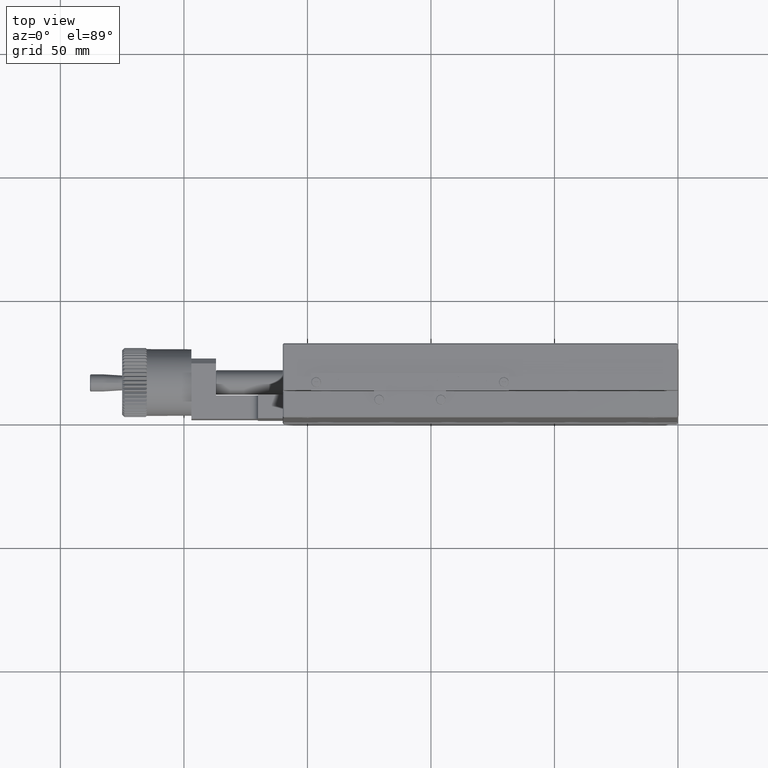
[diagram: clean part render]
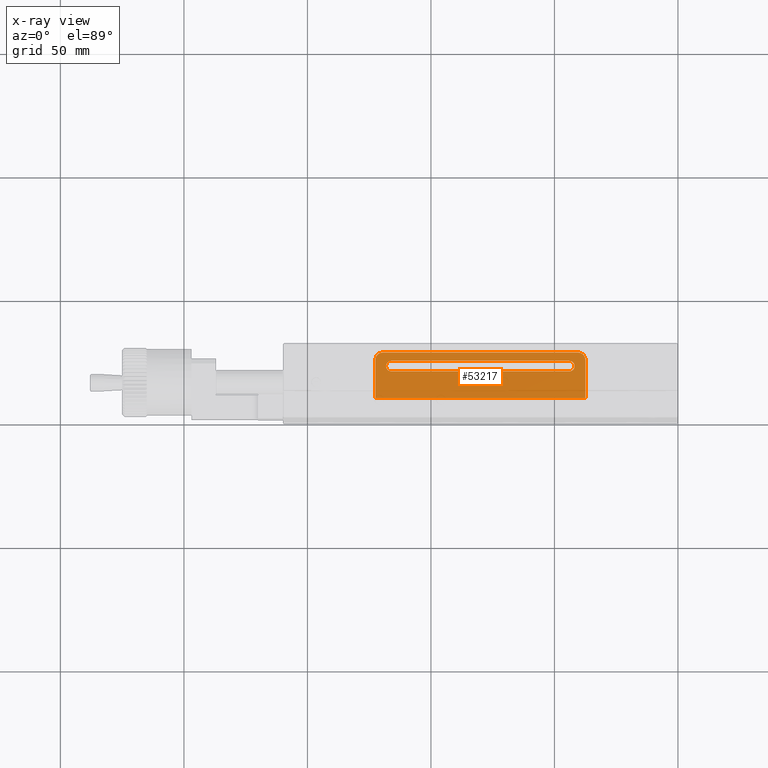
[diagram: x-ray — body ghosted, one internal face saturated and labeled with its STEP entity id]
A machine part, top view, then the same camera in x-ray: the body is ghosted and one INTERNAL B-rep face — a face not visible from any outside direction — is saturated and labeled: STEP entity #53217.
In plain terms, the highlighted planar face has unit normal (0, 0, 1).
Its self-contained STEP definition (entity closure, byte-faithful):
#2204 = CARTESIAN_POINT ( 'NONE',  ( -119.5000000000000142, 29.00000000000000000, -80.00000000000000000 ) ) ;
#2285 = CARTESIAN_POINT ( 'NONE',  ( -122.5000000000000000, 26.00000000000000355, -80.00000000000000000 ) ) ;
#3199 = VERTEX_POINT ( 'NONE', #26656 ) ;
#3521 = CARTESIAN_POINT ( 'NONE',  ( -119.5000000000000142, 26.00000000000000355, -80.00000000000000000 ) ) ;
#3523 = CARTESIAN_POINT ( 'NONE',  ( -44.00000000000000000, 23.50000000000000000, -80.00000000000000000 ) ) ;
#3774 = FACE_BOUND ( 'NONE', #45595, .T. ) ;
#4638 = ORIENTED_EDGE ( 'NONE', *, *, #22800, .T. ) ;
#4965 = CARTESIAN_POINT ( 'NONE',  ( -122.5000000000000000, 10.50000000000000000, -80.00000000000000000 ) ) ;
#5155 = ORIENTED_EDGE ( 'NONE', *, *, #18554, .T. ) ;
#6564 = CARTESIAN_POINT ( 'NONE',  ( -119.5000000000000142, 21.35000000000000142, -80.00000000000000000 ) ) ;
#7217 = CARTESIAN_POINT ( 'NONE',  ( -116.0000000000000000, 23.50000000000000000, -80.00000000000000000 ) ) ;
#8283 = VERTEX_POINT ( 'NONE', #55330 ) ;
#9754 = EDGE_CURVE ( 'NONE', #8283, #32948, #34689, .T. ) ;
#9963 = DIRECTION ( 'NONE',  ( -1.000000000000000000, -0.000000000000000000, 0.000000000000000000 ) ) ;
#10405 = EDGE_CURVE ( 'NONE', #8283, #24256, #32343, .T. ) ;
#11777 = CARTESIAN_POINT ( 'NONE',  ( -116.0000000000000000, 21.35000000000000142, -80.00000000000000000 ) ) ;
#11975 = EDGE_CURVE ( 'NONE', #51553, #31522, #61649, .T. ) ;
#13880 = VECTOR ( 'NONE', #66715, 1000.000000000000000 ) ;
#13931 = DIRECTION ( 'NONE',  ( 1.000000000000000000, 0.000000000000000000, 0.000000000000000000 ) ) ;
#14692 = CARTESIAN_POINT ( 'NONE',  ( -119.5000000000000142, 26.00000000000000355, -80.00000000000000000 ) ) ;
#16290 = VECTOR ( 'NONE', #44401, 1000.000000000000000 ) ;
#18554 = EDGE_CURVE ( 'NONE', #32948, #53205, #50037, .T. ) ;
#19369 = CARTESIAN_POINT ( 'NONE',  ( -40.50000000000000000, 26.00000000000000355, -80.00000000000000000 ) ) ;
#19381 = EDGE_CURVE ( 'NONE', #31522, #65044, #38273, .T. ) ;
#19806 = CARTESIAN_POINT ( 'NONE',  ( -119.5000000000000142, 29.00000000000000355, -80.00000000000000000 ) ) ;
#19842 = ORIENTED_EDGE ( 'NONE', *, *, #44876, .T. ) ;
#20101 = CARTESIAN_POINT ( 'NONE',  ( -44.00000000000000000, 21.35000000000000142, -80.00000000000000000 ) ) ;
#22337 = ORIENTED_EDGE ( 'NONE', *, *, #10405, .F. ) ;
#22800 = EDGE_CURVE ( 'NONE', #28086, #24256, #29404, .T. ) ;
#24121 = DIRECTION ( 'NONE',  ( 0.000000000000000000, 0.000000000000000000, 1.000000000000000000 ) ) ;
#24256 = VERTEX_POINT ( 'NONE', #4965 ) ;
#24991 = DIRECTION ( 'NONE',  ( 0.000000000000000000, 0.000000000000000000, 1.000000000000000000 ) ) ;
#25731 = DIRECTION ( 'NONE',  ( -0.000000000000000000, -0.000000000000000000, -1.000000000000000000 ) ) ;
#26656 = CARTESIAN_POINT ( 'NONE',  ( -44.00000000000000000, 25.64999999999999858, -80.00000000000000000 ) ) ;
#27061 = ORIENTED_EDGE ( 'NONE', *, *, #11975, .T. ) ;
#28086 = VERTEX_POINT ( 'NONE', #2285 ) ;
#29404 = LINE ( 'NONE', #51671, #42165 ) ;
#30551 = AXIS2_PLACEMENT_3D ( 'NONE', #3521, #24991, #54162 ) ;
#31522 = VERTEX_POINT ( 'NONE', #11777 ) ;
#32343 = LINE ( 'NONE', #44036, #16290 ) ;
#32948 = VERTEX_POINT ( 'NONE', #59436 ) ;
#34689 = LINE ( 'NONE', #57680, #43020 ) ;
#35291 = DIRECTION ( 'NONE',  ( -0.000000000000000000, -0.000000000000000000, -1.000000000000000000 ) ) ;
#35326 = CIRCLE ( 'NONE', #63230, 2.149999999999999023 ) ;
#37662 = PLANE ( 'NONE',  #65440 ) ;
#38224 = EDGE_LOOP ( 'NONE', ( #58460, #19842, #4638, #22337, #50708, #5155 ) ) ;
#38273 = CIRCLE ( 'NONE', #53611, 2.149999999999999023 ) ;
#39233 = VERTEX_POINT ( 'NONE', #19806 ) ;
#41093 = DIRECTION ( 'NONE',  ( 0.000000000000000000, -1.000000000000000000, -0.000000000000000000 ) ) ;
#41236 = EDGE_CURVE ( 'NONE', #53205, #39233, #45949, .T. ) ;
#42165 = VECTOR ( 'NONE', #41093, 1000.000000000000000 ) ;
#43020 = VECTOR ( 'NONE', #58045, 1000.000000000000000 ) ;
#44036 = CARTESIAN_POINT ( 'NONE',  ( -160.0000000000000000, 10.50000000000000000, -80.00000000000000000 ) ) ;
#44305 = CARTESIAN_POINT ( 'NONE',  ( -116.0000000000000000, 25.64999999999999858, -80.00000000000000000 ) ) ;
#44401 = DIRECTION ( 'NONE',  ( -1.000000000000000000, -0.000000000000000000, 0.000000000000000000 ) ) ;
#44876 = EDGE_CURVE ( 'NONE', #39233, #28086, #70170, .T. ) ;
#45595 = EDGE_LOOP ( 'NONE', ( #27061, #65869, #53786, #62448 ) ) ;
#45949 = LINE ( 'NONE', #2204, #56048 ) ;
#50037 = CIRCLE ( 'NONE', #71015, 3.000000000000002665 ) ;
#50300 = CARTESIAN_POINT ( 'NONE',  ( -119.5000000000000142, 25.64999999999999858, -80.00000000000000000 ) ) ;
#50708 = ORIENTED_EDGE ( 'NONE', *, *, #9754, .T. ) ;
#51553 = VERTEX_POINT ( 'NONE', #20101 ) ;
#51671 = CARTESIAN_POINT ( 'NONE',  ( -122.5000000000000000, 26.00000000000000355, -80.00000000000000000 ) ) ;
#51935 = CARTESIAN_POINT ( 'NONE',  ( -40.49999999999999289, 29.00000000000000000, -80.00000000000000000 ) ) ;
#53205 = VERTEX_POINT ( 'NONE', #51935 ) ;
#53217 = ADVANCED_FACE ( 'NONE', ( #70843, #3774 ), #37662, .T. ) ;
#53611 = AXIS2_PLACEMENT_3D ( 'NONE', #7217, #35291, #63021 ) ;
#53786 = ORIENTED_EDGE ( 'NONE', *, *, #58693, .T. ) ;
#54162 = DIRECTION ( 'NONE',  ( 1.000000000000000000, 0.000000000000000000, 0.000000000000000000 ) ) ;
#55330 = CARTESIAN_POINT ( 'NONE',  ( -37.50000000000000711, 10.50000000000000000, -80.00000000000000000 ) ) ;
#56048 = VECTOR ( 'NONE', #63448, 1000.000000000000000 ) ;
#57680 = CARTESIAN_POINT ( 'NONE',  ( -37.49999999999999289, 26.00000000000000355, -80.00000000000000000 ) ) ;
#57869 = DIRECTION ( 'NONE',  ( 1.000000000000000000, 0.000000000000000000, 0.000000000000000000 ) ) ;
#58045 = DIRECTION ( 'NONE',  ( -0.000000000000000000, 1.000000000000000000, 0.000000000000000000 ) ) ;
#58460 = ORIENTED_EDGE ( 'NONE', *, *, #41236, .T. ) ;
#58693 = EDGE_CURVE ( 'NONE', #65044, #3199, #70752, .T. ) ;
#59208 = DIRECTION ( 'NONE',  ( 0.000000000000000000, 0.000000000000000000, 1.000000000000000000 ) ) ;
#59436 = CARTESIAN_POINT ( 'NONE',  ( -37.49999999999999289, 26.00000000000000355, -80.00000000000000000 ) ) ;
#61649 = LINE ( 'NONE', #6564, #61738 ) ;
#61738 = VECTOR ( 'NONE', #9963, 1000.000000000000000 ) ;
#62448 = ORIENTED_EDGE ( 'NONE', *, *, #62681, .T. ) ;
#62681 = EDGE_CURVE ( 'NONE', #3199, #51553, #35326, .T. ) ;
#63021 = DIRECTION ( 'NONE',  ( 1.000000000000000000, 0.000000000000000000, 0.000000000000000000 ) ) ;
#63230 = AXIS2_PLACEMENT_3D ( 'NONE', #3523, #25731, #57869 ) ;
#63448 = DIRECTION ( 'NONE',  ( -1.000000000000000000, -0.000000000000000000, 0.000000000000000000 ) ) ;
#65044 = VERTEX_POINT ( 'NONE', #44305 ) ;
#65440 = AXIS2_PLACEMENT_3D ( 'NONE', #14692, #59208, #66079 ) ;
#65869 = ORIENTED_EDGE ( 'NONE', *, *, #19381, .T. ) ;
#66079 = DIRECTION ( 'NONE',  ( 1.000000000000000000, 0.000000000000000000, -0.000000000000000000 ) ) ;
#66715 = DIRECTION ( 'NONE',  ( 1.000000000000000000, 0.000000000000000000, -0.000000000000000000 ) ) ;
#70170 = CIRCLE ( 'NONE', #30551, 3.000000000000016431 ) ;
#70752 = LINE ( 'NONE', #50300, #13880 ) ;
#70843 = FACE_OUTER_BOUND ( 'NONE', #38224, .T. ) ;
#71015 = AXIS2_PLACEMENT_3D ( 'NONE', #19369, #24121, #13931 ) ;